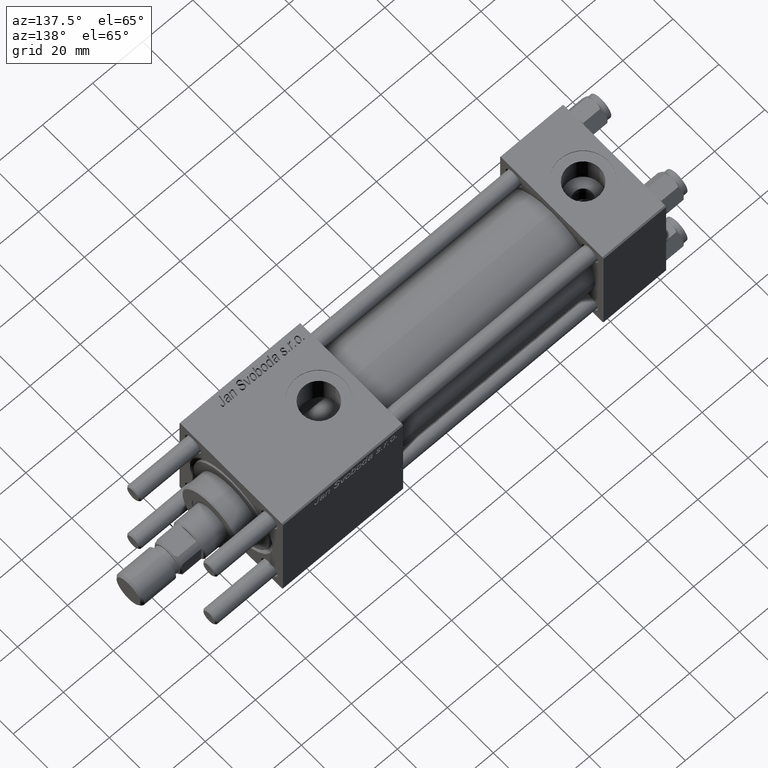
[diagram: clean part render]
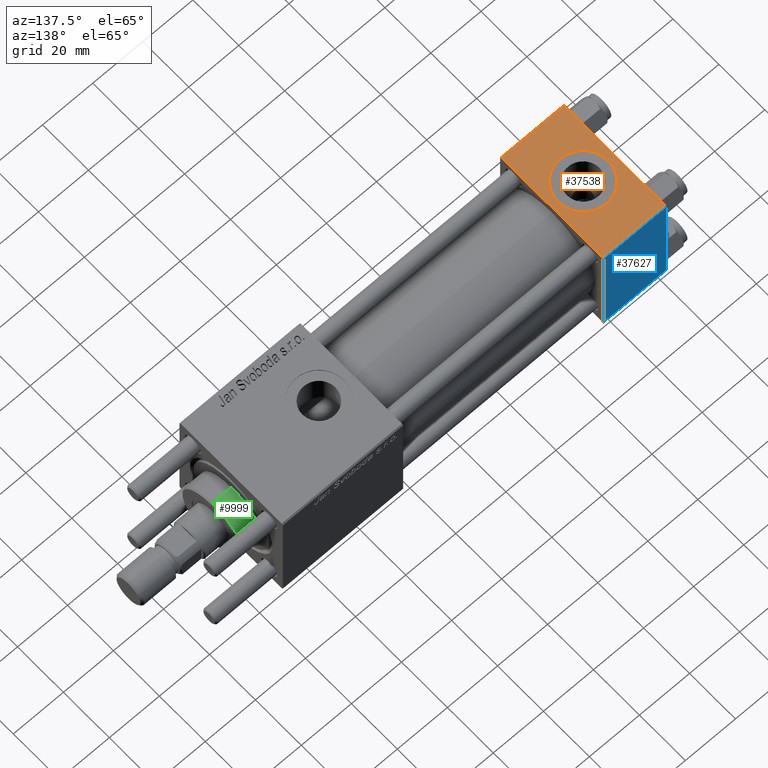
[diagram: same view with three faces highlighted in distinct colors, each labeled with its STEP entity id]
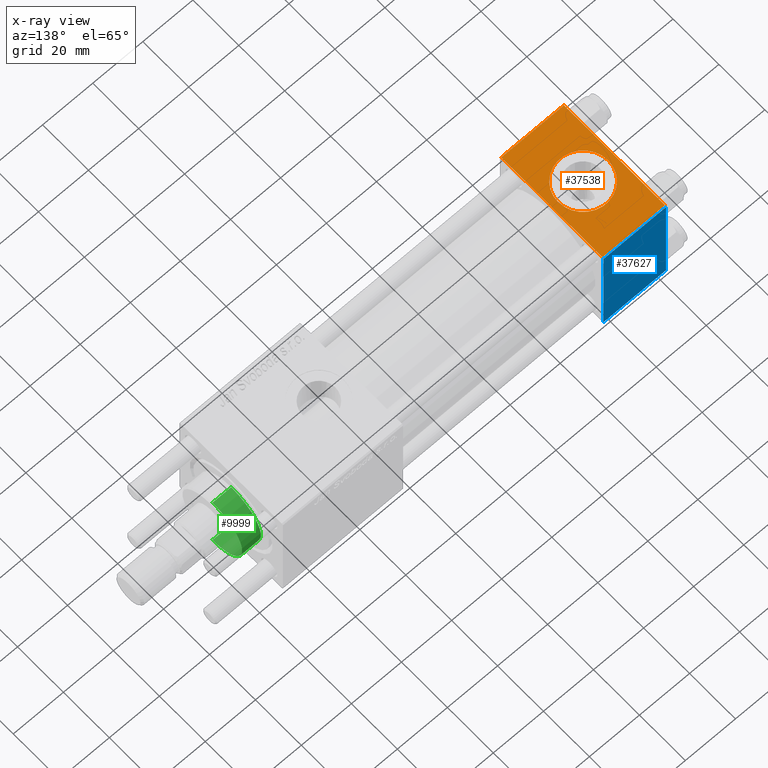
[diagram: x-ray of the same camera — body ghosted, the three highlighted faces saturated]
A machine part, auxiliary view with three faces highlighted in distinct colors.
The next image is the same camera in x-ray (body ghosted, the three faces saturated) — at least one of them is partly hidden behind the body in this view.
Their STEP definitions:

[orange] entity #37538 — the highlighted planar face has unit normal (0, 0, -1).
#247 = ORIENTED_EDGE ( 'NONE', *, *, #17507, .T. ) ;
#772 = VERTEX_POINT ( 'NONE', #19935 ) ;
#1874 = AXIS2_PLACEMENT_3D ( 'NONE', #2140, #10228, #47226 ) ;
#1884 = DIRECTION ( 'NONE',  ( 0.000000000000000000, 0.000000000000000000, 1.000000000000000000 ) ) ;
#2136 = ORIENTED_EDGE ( 'NONE', *, *, #35528, .F. ) ;
#2140 = CARTESIAN_POINT ( 'NONE',  ( 25.00000000000000000, 22.50000000000000000, 22.50000000000000355 ) ) ;
#4125 = EDGE_CURVE ( 'NONE', #55033, #51707, #31579, .T. ) ;
#5348 = CARTESIAN_POINT ( 'NONE',  ( 25.00000000000000000, -21.99999999999999289, 22.50000000000000000 ) ) ;
#6320 = DIRECTION ( 'NONE',  ( 0.000000000000000000, 0.000000000000000000, 1.000000000000000000 ) ) ;
#6424 = EDGE_CURVE ( 'NONE', #40601, #37063, #46221, .T. ) ;
#6581 = VECTOR ( 'NONE', #43799, 1000.000000000000000 ) ;
#7260 = CARTESIAN_POINT ( 'NONE',  ( 0.000000000000000000, -21.99999999999997868, 22.50000000000000000 ) ) ;
#7760 = AXIS2_PLACEMENT_3D ( 'NONE', #15619, #1884, #10556 ) ;
#8861 = EDGE_LOOP ( 'NONE', ( #247, #30627, #29953, #46923 ) ) ;
#10228 = DIRECTION ( 'NONE',  ( 0.000000000000000000, 7.709882115452476934E-17, -1.000000000000000000 ) ) ;
#10556 = DIRECTION ( 'NONE',  ( 1.000000000000000000, 0.000000000000000000, 0.000000000000000000 ) ) ;
#14708 = FACE_OUTER_BOUND ( 'NONE', #8861, .T. ) ;
#15087 = EDGE_CURVE ( 'NONE', #772, #43358, #37209, .T. ) ;
#15619 = CARTESIAN_POINT ( 'NONE',  ( 12.50000000000000000, -1.734723475976807094E-15, 22.50000000000000000 ) ) ;
#15847 = CARTESIAN_POINT ( 'NONE',  ( 12.50000000000000000, -1.734723475976807094E-15, 22.50000000000000000 ) ) ;
#17507 = EDGE_CURVE ( 'NONE', #43358, #40601, #31436, .T. ) ;
#18641 = CARTESIAN_POINT ( 'NONE',  ( 22.50000000000000000, -1.734723475976807094E-15, 22.50000000000000000 ) ) ;
#19935 = CARTESIAN_POINT ( 'NONE',  ( 25.00000000000000000, 21.99999999999999289, 22.50000000000000355 ) ) ;
#21386 = VECTOR ( 'NONE', #49631, 1000.000000000000000 ) ;
#23449 = CARTESIAN_POINT ( 'NONE',  ( 25.00000000000000000, -21.99999999999997868, 22.50000000000000000 ) ) ;
#23553 = DIRECTION ( 'NONE',  ( 1.000000000000000000, 0.000000000000000000, 0.000000000000000000 ) ) ;
#24529 = DIRECTION ( 'NONE',  ( 1.000000000000000000, 0.000000000000000000, 0.000000000000000000 ) ) ;
#27007 = CARTESIAN_POINT ( 'NONE',  ( 25.00000000000000000, 22.50000000000000000, 22.50000000000000355 ) ) ;
#28270 = DIRECTION ( 'NONE',  ( -1.000000000000000000, 0.000000000000000000, 0.000000000000000000 ) ) ;
#29030 = FACE_BOUND ( 'NONE', #37609, .T. ) ;
#29953 = ORIENTED_EDGE ( 'NONE', *, *, #35240, .F. ) ;
#30627 = ORIENTED_EDGE ( 'NONE', *, *, #6424, .T. ) ;
#31436 = LINE ( 'NONE', #50227, #21386 ) ;
#31579 = CIRCLE ( 'NONE', #7760, 9.999999999999998224 ) ;
#35240 = EDGE_CURVE ( 'NONE', #772, #37063, #40434, .T. ) ;
#35528 = EDGE_CURVE ( 'NONE', #51707, #55033, #41850, .T. ) ;
#35920 = ORIENTED_EDGE ( 'NONE', *, *, #4125, .F. ) ;
#37063 = VERTEX_POINT ( 'NONE', #23449 ) ;
#37209 = LINE ( 'NONE', #46754, #45101 ) ;
#37538 = ADVANCED_FACE ( 'NONE', ( #29030, #14708 ), #38563, .F. ) ;
#37609 = EDGE_LOOP ( 'NONE', ( #2136, #35920 ) ) ;
#38563 = PLANE ( 'NONE',  #1874 ) ;
#40434 = LINE ( 'NONE', #27007, #6581 ) ;
#40601 = VERTEX_POINT ( 'NONE', #7260 ) ;
#41850 = CIRCLE ( 'NONE', #57093, 9.999999999999998224 ) ;
#43358 = VERTEX_POINT ( 'NONE', #47957 ) ;
#43799 = DIRECTION ( 'NONE',  ( 0.000000000000000000, -1.000000000000000000, -7.709882115452476934E-17 ) ) ;
#44016 = VECTOR ( 'NONE', #23553, 1000.000000000000000 ) ;
#45101 = VECTOR ( 'NONE', #28270, 1000.000000000000000 ) ;
#46221 = LINE ( 'NONE', #5348, #44016 ) ;
#46754 = CARTESIAN_POINT ( 'NONE',  ( 0.000000000000000000, 21.99999999999999289, 22.50000000000000355 ) ) ;
#46923 = ORIENTED_EDGE ( 'NONE', *, *, #15087, .T. ) ;
#47226 = DIRECTION ( 'NONE',  ( 0.000000000000000000, 1.000000000000000000, 7.709882115452476934E-17 ) ) ;
#47957 = CARTESIAN_POINT ( 'NONE',  ( 0.000000000000000000, 21.99999999999999289, 22.50000000000000355 ) ) ;
#49631 = DIRECTION ( 'NONE',  ( 0.000000000000000000, -1.000000000000000000, -7.709882115452476934E-17 ) ) ;
#50227 = CARTESIAN_POINT ( 'NONE',  ( 0.000000000000000000, 22.50000000000000000, 22.50000000000000355 ) ) ;
#51707 = VERTEX_POINT ( 'NONE', #18641 ) ;
#55033 = VERTEX_POINT ( 'NONE', #58656 ) ;
#57093 = AXIS2_PLACEMENT_3D ( 'NONE', #15847, #6320, #24529 ) ;
#58656 = CARTESIAN_POINT ( 'NONE',  ( 2.500000000000003997, -5.100766768294543310E-16, 22.50000000000000000 ) ) ;

[blue] entity #37627 — the highlighted planar face has unit normal (0, 1, 0).
#574 = CARTESIAN_POINT ( 'NONE',  ( 25.00000000000000000, 22.50000000000000000, 22.50000000000000355 ) ) ;
#3647 = CARTESIAN_POINT ( 'NONE',  ( 25.00000000000000000, 22.50000000000000000, -21.99999999999998224 ) ) ;
#3930 = LINE ( 'NONE', #3647, #19787 ) ;
#4504 = VERTEX_POINT ( 'NONE', #39041 ) ;
#5727 = AXIS2_PLACEMENT_3D ( 'NONE', #57052, #16163, #21235 ) ;
#7837 = CARTESIAN_POINT ( 'NONE',  ( 0.000000000000000000, 22.50000000000000000, 21.99999999999999645 ) ) ;
#12510 = ORIENTED_EDGE ( 'NONE', *, *, #28940, .F. ) ;
#13801 = EDGE_CURVE ( 'NONE', #20609, #4504, #49526, .T. ) ;
#14581 = DIRECTION ( 'NONE',  ( 0.000000000000000000, 0.000000000000000000, -1.000000000000000000 ) ) ;
#16163 = DIRECTION ( 'NONE',  ( -0.000000000000000000, 1.000000000000000000, 0.000000000000000000 ) ) ;
#18306 = ORIENTED_EDGE ( 'NONE', *, *, #29206, .T. ) ;
#18330 = CARTESIAN_POINT ( 'NONE',  ( 0.000000000000000000, 22.50000000000000000, -21.99999999999996803 ) ) ;
#18749 = LINE ( 'NONE', #45601, #20664 ) ;
#19787 = VECTOR ( 'NONE', #40345, 1000.000000000000000 ) ;
#20609 = VERTEX_POINT ( 'NONE', #43398 ) ;
#20638 = FACE_OUTER_BOUND ( 'NONE', #55468, .T. ) ;
#20664 = VECTOR ( 'NONE', #14581, 1000.000000000000000 ) ;
#21235 = DIRECTION ( 'NONE',  ( 0.000000000000000000, -0.000000000000000000, 1.000000000000000000 ) ) ;
#22726 = EDGE_CURVE ( 'NONE', #4504, #23546, #3930, .T. ) ;
#23546 = VERTEX_POINT ( 'NONE', #18330 ) ;
#23767 = DIRECTION ( 'NONE',  ( 1.000000000000000000, 0.000000000000000000, 0.000000000000000000 ) ) ;
#26016 = PLANE ( 'NONE',  #5727 ) ;
#27964 = ORIENTED_EDGE ( 'NONE', *, *, #13801, .T. ) ;
#28253 = LINE ( 'NONE', #46446, #49293 ) ;
#28940 = EDGE_CURVE ( 'NONE', #51102, #23546, #18749, .T. ) ;
#29206 = EDGE_CURVE ( 'NONE', #51102, #20609, #28253, .T. ) ;
#32515 = DIRECTION ( 'NONE',  ( 0.000000000000000000, 0.000000000000000000, -1.000000000000000000 ) ) ;
#37627 = ADVANCED_FACE ( 'NONE', ( #20638 ), #26016, .T. ) ;
#39041 = CARTESIAN_POINT ( 'NONE',  ( 25.00000000000000000, 22.50000000000000000, -21.99999999999996803 ) ) ;
#40345 = DIRECTION ( 'NONE',  ( -1.000000000000000000, 0.000000000000000000, 0.000000000000000000 ) ) ;
#43398 = CARTESIAN_POINT ( 'NONE',  ( 25.00000000000000000, 22.50000000000000000, 21.99999999999999645 ) ) ;
#44135 = VECTOR ( 'NONE', #32515, 1000.000000000000000 ) ;
#45601 = CARTESIAN_POINT ( 'NONE',  ( 0.000000000000000000, 22.50000000000000000, 22.50000000000000355 ) ) ;
#46446 = CARTESIAN_POINT ( 'NONE',  ( 25.00000000000000000, 22.50000000000000000, 21.99999999999999645 ) ) ;
#49293 = VECTOR ( 'NONE', #23767, 1000.000000000000000 ) ;
#49526 = LINE ( 'NONE', #574, #44135 ) ;
#51102 = VERTEX_POINT ( 'NONE', #7837 ) ;
#55468 = EDGE_LOOP ( 'NONE', ( #27964, #56819, #12510, #18306 ) ) ;
#56819 = ORIENTED_EDGE ( 'NONE', *, *, #22726, .T. ) ;
#57052 = CARTESIAN_POINT ( 'NONE',  ( 25.00000000000000000, 22.50000000000000000, 22.50000000000000355 ) ) ;

[green] entity #9999 — the highlighted cylindrical surface (partial cylindrical patch) has radius 13 mm, axis along (-1, -0, 0).
#895 = DIRECTION ( 'NONE',  ( -0.000000000000000000, -0.000000000000000000, -1.000000000000000000 ) ) ;
#1188 = FACE_OUTER_BOUND ( 'NONE', #25387, .T. ) ;
#2010 = CARTESIAN_POINT ( 'NONE',  ( 13.00000000000000178, 1.592040838891559293E-15, 36.69999999999999574 ) ) ;
#3250 = DIRECTION ( 'NONE',  ( 1.000000000000000000, 0.000000000000000000, 0.000000000000000000 ) ) ;
#5040 = CARTESIAN_POINT ( 'NONE',  ( -13.00000000000000178, 0.000000000000000000, 28.69999999999999929 ) ) ;
#7815 = EDGE_CURVE ( 'NONE', #45344, #45431, #35946, .T. ) ;
#8000 = CARTESIAN_POINT ( 'NONE',  ( 13.00000000000000178, 1.592040838891559293E-15, 28.69999999999999929 ) ) ;
#8643 = VECTOR ( 'NONE', #19341, 1000.000000000000000 ) ;
#9999 = ADVANCED_FACE ( 'NONE', ( #1188 ), #28076, .T. ) ;
#12368 = ORIENTED_EDGE ( 'NONE', *, *, #39081, .T. ) ;
#14922 = CARTESIAN_POINT ( 'NONE',  ( 0.000000000000000000, 0.000000000000000000, 36.69999999999999574 ) ) ;
#14945 = CARTESIAN_POINT ( 'NONE',  ( 0.000000000000000000, 0.000000000000000000, 28.69999999999999929 ) ) ;
#16585 = CARTESIAN_POINT ( 'NONE',  ( 13.00000000000000178, 1.592040838891559293E-15, 36.20000000000000995 ) ) ;
#19341 = DIRECTION ( 'NONE',  ( -0.000000000000000000, -0.000000000000000000, -1.000000000000000000 ) ) ;
#21189 = ORIENTED_EDGE ( 'NONE', *, *, #40086, .T. ) ;
#24055 = CIRCLE ( 'NONE', #58312, 13.00000000000000178 ) ;
#24209 = DIRECTION ( 'NONE',  ( 1.000000000000000000, 0.000000000000000000, 0.000000000000000000 ) ) ;
#24380 = VERTEX_POINT ( 'NONE', #16585 ) ;
#25387 = EDGE_LOOP ( 'NONE', ( #12368, #21189, #27268, #31271 ) ) ;
#27268 = ORIENTED_EDGE ( 'NONE', *, *, #45139, .T. ) ;
#28076 = CYLINDRICAL_SURFACE ( 'NONE', #49847, 13.00000000000000178 ) ;
#31271 = ORIENTED_EDGE ( 'NONE', *, *, #7815, .F. ) ;
#31663 = VECTOR ( 'NONE', #52991, 1000.000000000000000 ) ;
#34300 = DIRECTION ( 'NONE',  ( 0.000000000000000000, 0.000000000000000000, -1.000000000000000000 ) ) ;
#35946 = LINE ( 'NONE', #48507, #31663 ) ;
#39081 = EDGE_CURVE ( 'NONE', #45344, #24380, #45797, .T. ) ;
#40086 = EDGE_CURVE ( 'NONE', #24380, #47469, #42617, .T. ) ;
#42617 = LINE ( 'NONE', #2010, #8643 ) ;
#42909 = AXIS2_PLACEMENT_3D ( 'NONE', #44430, #34300, #3250 ) ;
#44430 = CARTESIAN_POINT ( 'NONE',  ( 0.000000000000000000, 0.000000000000000000, 36.20000000000000995 ) ) ;
#45139 = EDGE_CURVE ( 'NONE', #47469, #45431, #24055, .T. ) ;
#45344 = VERTEX_POINT ( 'NONE', #49214 ) ;
#45431 = VERTEX_POINT ( 'NONE', #5040 ) ;
#45797 = CIRCLE ( 'NONE', #42909, 13.00000000000000178 ) ;
#47469 = VERTEX_POINT ( 'NONE', #8000 ) ;
#48507 = CARTESIAN_POINT ( 'NONE',  ( -13.00000000000000178, 0.000000000000000000, 36.69999999999999574 ) ) ;
#49214 = CARTESIAN_POINT ( 'NONE',  ( -13.00000000000000178, 0.000000000000000000, 36.20000000000000995 ) ) ;
#49847 = AXIS2_PLACEMENT_3D ( 'NONE', #14922, #895, #50739 ) ;
#50739 = DIRECTION ( 'NONE',  ( -1.000000000000000000, 0.000000000000000000, 0.000000000000000000 ) ) ;
#51361 = DIRECTION ( 'NONE',  ( 0.000000000000000000, 0.000000000000000000, 1.000000000000000000 ) ) ;
#52991 = DIRECTION ( 'NONE',  ( -0.000000000000000000, -0.000000000000000000, -1.000000000000000000 ) ) ;
#58312 = AXIS2_PLACEMENT_3D ( 'NONE', #14945, #51361, #24209 ) ;